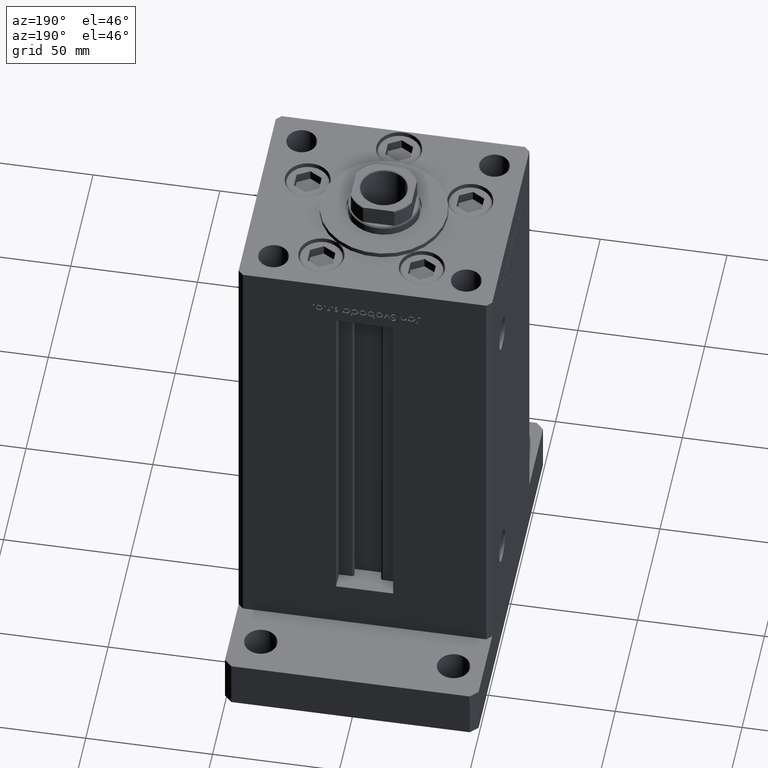
[diagram: clean part render]
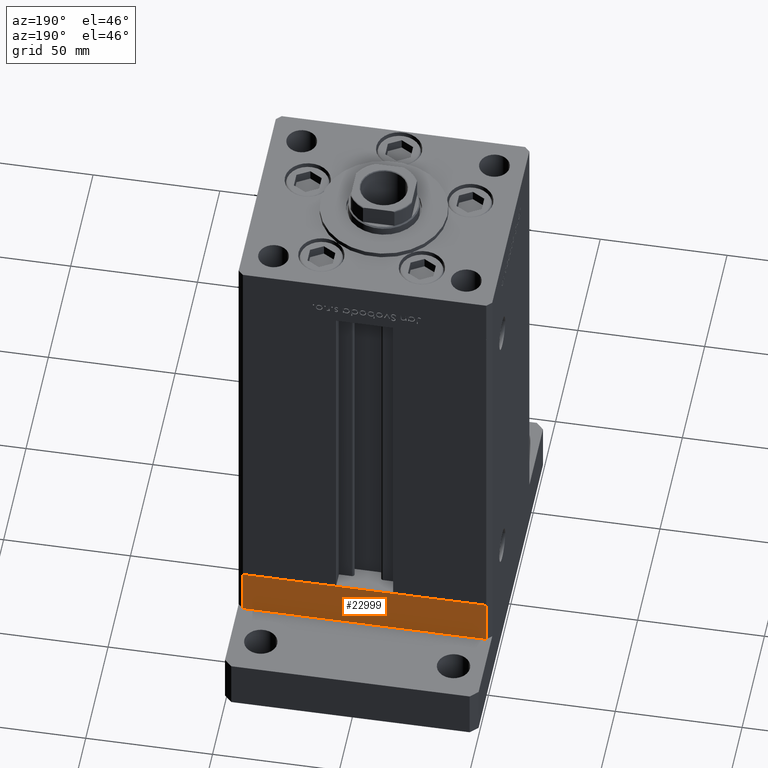
[diagram: same view with one face highlighted and labeled with its STEP entity id]
A machine part, auxiliary view. The second image highlights one B-rep face of the part: STEP entity #22999.
In plain terms, the highlighted planar face has unit normal (0, 1, 0).
Its self-contained STEP definition (entity closure, byte-faithful):
#2375 = VERTEX_POINT ( 'NONE', #31701 ) ;
#2496 = DIRECTION ( 'NONE',  ( -1.000000000000000000, -3.614007241618350743E-16, 0.000000000000000000 ) ) ;
#3927 = ORIENTED_EDGE ( 'NONE', *, *, #6086, .F. ) ;
#6086 = EDGE_CURVE ( 'NONE', #15468, #27157, #13672, .T. ) ;
#8523 = ORIENTED_EDGE ( 'NONE', *, *, #37289, .T. ) ;
#8929 = DIRECTION ( 'NONE',  ( -1.000000000000000000, -3.614007241618350743E-16, 0.000000000000000000 ) ) ;
#9105 = AXIS2_PLACEMENT_3D ( 'NONE', #20752, #15130, #16668 ) ;
#9632 = ORIENTED_EDGE ( 'NONE', *, *, #36776, .T. ) ;
#10704 = CARTESIAN_POINT ( 'NONE',  ( 47.99999999999990763, 43.50000000000000000, 0.000000000000000000 ) ) ;
#10889 = CARTESIAN_POINT ( 'NONE',  ( 47.99999999999990763, 43.50000000000000000, 0.000000000000000000 ) ) ;
#11313 = PLANE ( 'NONE',  #9105 ) ;
#11462 = EDGE_CURVE ( 'NONE', #27157, #31291, #27727, .T. ) ;
#12527 = VECTOR ( 'NONE', #2496, 1000.000000000000000 ) ;
#13672 = LINE ( 'NONE', #42203, #20177 ) ;
#15130 = DIRECTION ( 'NONE',  ( -3.614007241618350743E-16, 1.000000000000000000, 0.000000000000000000 ) ) ;
#15468 = VERTEX_POINT ( 'NONE', #46372 ) ;
#16300 = ORIENTED_EDGE ( 'NONE', *, *, #11462, .F. ) ;
#16668 = DIRECTION ( 'NONE',  ( -1.000000000000000000, -3.614007241618350743E-16, 0.000000000000000000 ) ) ;
#16695 = DIRECTION ( 'NONE',  ( 0.000000000000000000, 0.000000000000000000, 1.000000000000000000 ) ) ;
#20177 = VECTOR ( 'NONE', #16695, 1000.000000000000000 ) ;
#20752 = CARTESIAN_POINT ( 'NONE',  ( 47.99999999999990763, 43.50000000000000000, -19.00000000000000000 ) ) ;
#22999 = ADVANCED_FACE ( 'NONE', ( #48535 ), #11313, .T. ) ;
#27157 = VERTEX_POINT ( 'NONE', #10704 ) ;
#27727 = LINE ( 'NONE', #10889, #12527 ) ;
#27844 = DIRECTION ( 'NONE',  ( 0.000000000000000000, 0.000000000000000000, 1.000000000000000000 ) ) ;
#29563 = CARTESIAN_POINT ( 'NONE',  ( 47.99999999999990763, 43.50000000000000000, -19.00000000000000000 ) ) ;
#31291 = VERTEX_POINT ( 'NONE', #32537 ) ;
#31701 = CARTESIAN_POINT ( 'NONE',  ( -48.00000000000000711, 43.49999999999996447, -19.00000000000000000 ) ) ;
#32537 = CARTESIAN_POINT ( 'NONE',  ( -48.00000000000000711, 43.49999999999996447, 0.000000000000000000 ) ) ;
#32732 = CARTESIAN_POINT ( 'NONE',  ( -48.00000000000000711, 43.49999999999996447, -19.00000000000000000 ) ) ;
#36776 = EDGE_CURVE ( 'NONE', #15468, #2375, #50209, .T. ) ;
#37289 = EDGE_CURVE ( 'NONE', #2375, #31291, #44960, .T. ) ;
#42203 = CARTESIAN_POINT ( 'NONE',  ( 47.99999999999990763, 43.50000000000000000, -19.00000000000000000 ) ) ;
#44960 = LINE ( 'NONE', #32732, #49434 ) ;
#46372 = CARTESIAN_POINT ( 'NONE',  ( 47.99999999999990763, 43.50000000000000000, -19.00000000000000000 ) ) ;
#47670 = VECTOR ( 'NONE', #8929, 1000.000000000000000 ) ;
#48535 = FACE_OUTER_BOUND ( 'NONE', #50916, .T. ) ;
#49434 = VECTOR ( 'NONE', #27844, 1000.000000000000000 ) ;
#50209 = LINE ( 'NONE', #29563, #47670 ) ;
#50916 = EDGE_LOOP ( 'NONE', ( #16300, #3927, #9632, #8523 ) ) ;